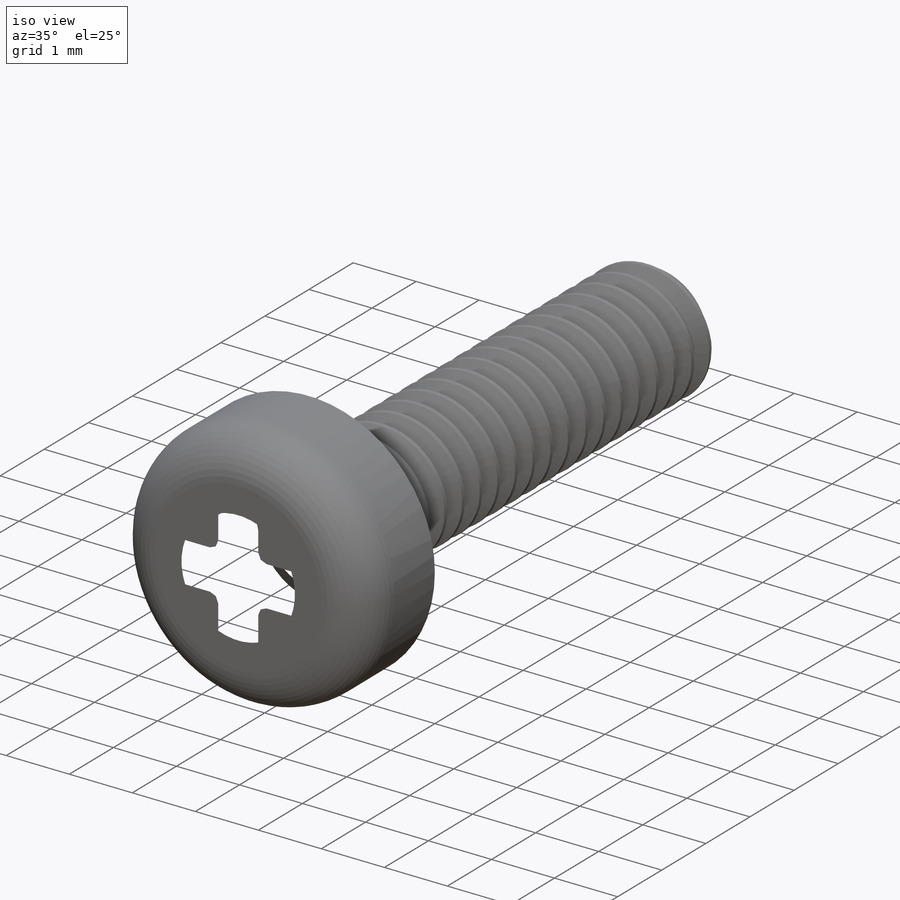
[diagram: iso view]
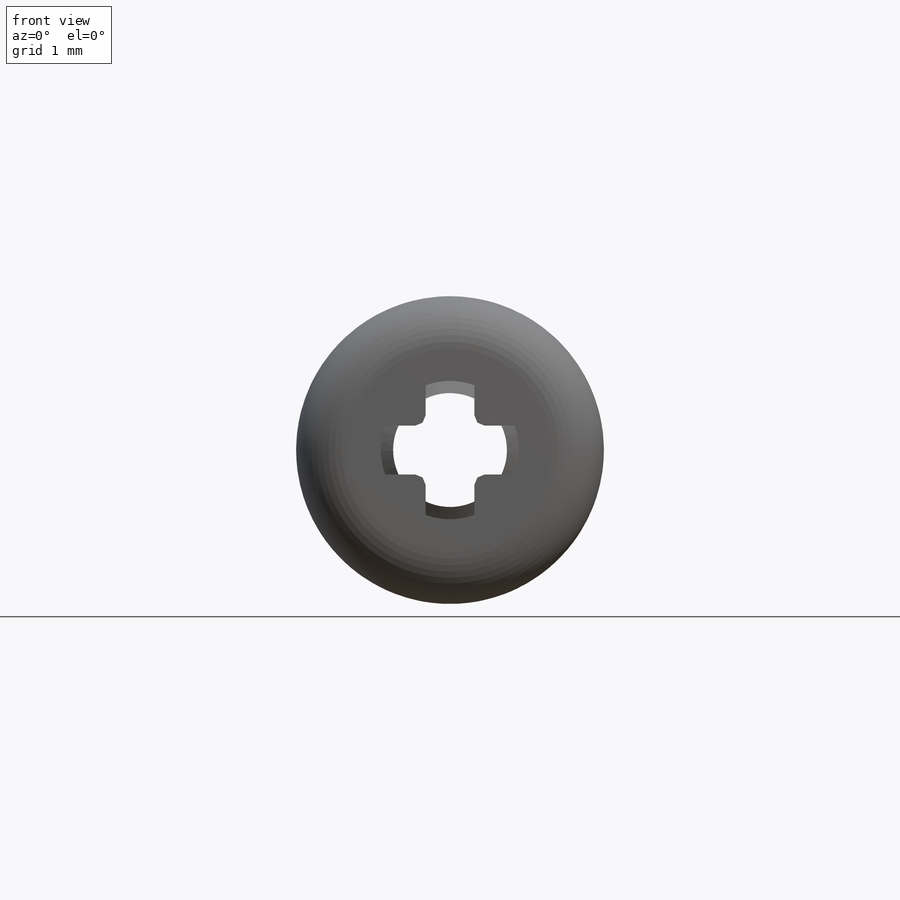
[diagram: front view]
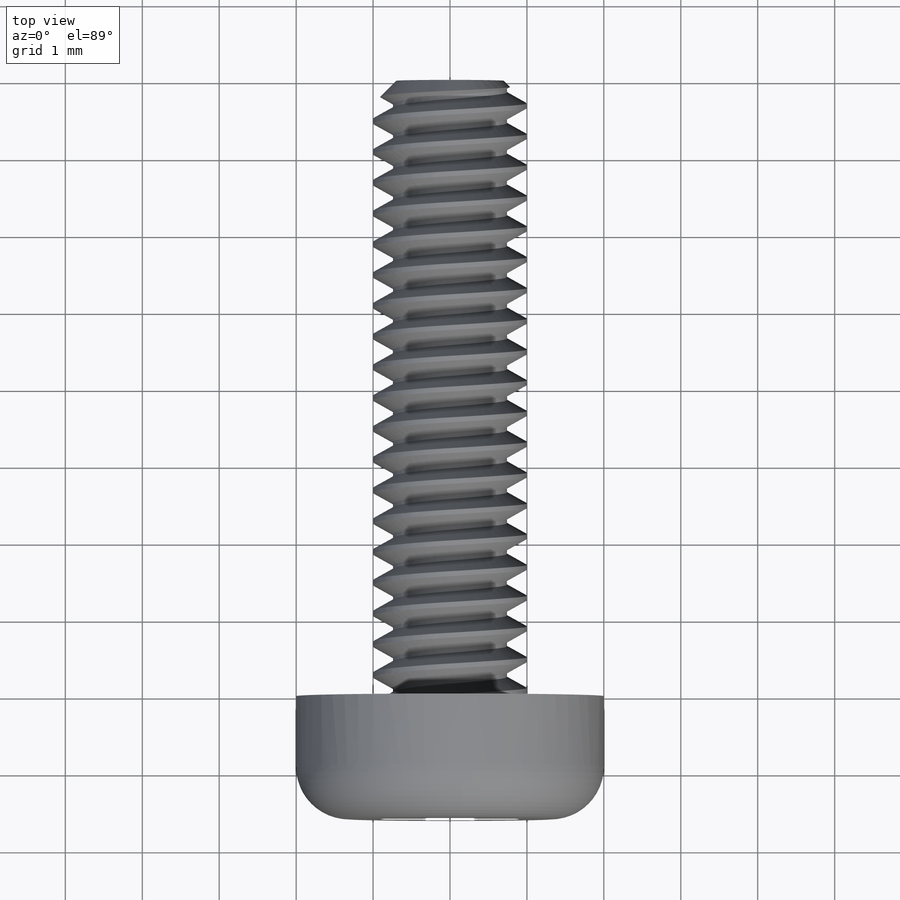
[diagram: top view]
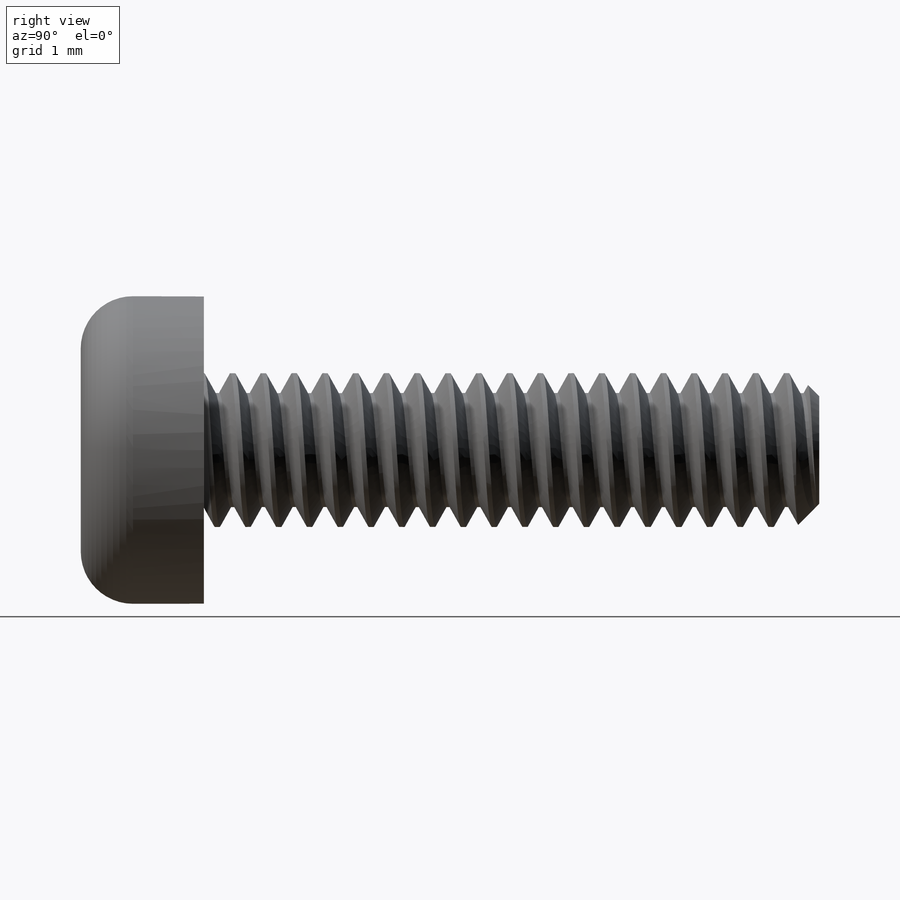
[diagram: right view]
SOLIDWORKS PART (.sldprt)
format: sldprt  version: not decoded by parser v0  size: 1,219,584 bytes
history: native  units: mm
features: sketch x9, extrude x3, material x1, cut_revolve x1, revolve x1, helix x1, chamfer x1, sweep x1, plane x1, cut_extrude x1, pattern_circular x1 (+13 scaffold rows collapsed; 1 parser-record rows omitted)
feature tree (35):
  scaffold x13  (default folders/planes/origin — collapsed)
  material  "Material <not specified>"
  sketch  "Sketch1"  dims[Washer OD=8.3312mm Head Dia=4.0mm Hex=6.35mm]
  extrude  "Extrude3"  Depth=1.6mm Head Ht=1.6mm
  sketch  "Sketch11"  dims[c1.D2=0.889mm c1.D4=0.68mm c1.D1=0.254mm c2.D2=~1.642533mm c2.D3=~1.947333mm c3.D2=~1.66218mm c4.D2=5.0deg c4.D1=~3.294374mm c5.D1=82.0deg c5.D2=0.254mm c5.D3=0.254mm c5.dia=2.1844mm c6.D1=0.4445mm c6.D5=0.08mm]
  cut_revolve  "Cut-Revolve3"  Angle=360deg
  sketch  "Sketch4"  dims[c1.Screw Dia=9.525mm c1.Screw Length=12.7mm c1.Drill Length=~7.14375mm c1.D1=~1.417672mm c2.D1=45.0deg c2.Body Length=44.958mm c2.Screw Length=12.7mm c3.Screw Length=25.4mm c3.D1=90.0deg c4.Screw Length=50.8mm c4.Length=~39.600133mm c4.dia=7.9248mm c4.length=50.8mm c5.length=6.35mm c6.length=76.2mm c7.length=8.0mm c7.dia=2.0mm]
  revolve  "Revolve1"  Angle=360deg
  sketch  "Sketch13"  dims[D1=0.0mm]
  helix  "Helix/Spiral1"  Pitch=9.6mm
  chamfer  "Chamfer2"  Distance=0.3mm Angle=45deg
  sketch  "Sketch14"  dims[c1.D1=0.05mm c1.D2=~2.089547mm c2.D2=58.0deg c2.D3=0.2mm c2.D4=0.0125mm]
  sweep  "Cut-Sweep1"
  plane  "Plane1"  Offset=38.1mm
  parser-record x1  (decoder bookkeeping rows leaked as tree rows — omitted from the tree; the rows remain in map.json)
  sketch  "Sketch29"
  extrude  "Extrude11"  [1 undecoded]
  sketch  "Sketch26"  dims[D1=0.4mm]
  extrude  "Extrude13"  [1 undecoded]
  sketch  "Sketch31"  dims[c1.slot dia=1.8mm c1.D1=45.0deg c1.D2=22.5deg c1.slot width=1.524mm c1.D4=6.985mm c2.D1=2.1875mm c3.D1=2.1875deg c3.D2=22.5deg c3.slot w=0.635mm c4.D1=~1.39194mm c5.D1=45.0deg c6.D1=~0.98425mm c7.D1=45.0deg c8.D1=~1.773601mm c9.D1=45.0deg c10.D1=~1.39194mm c11.D1=45.0deg]
  cut_extrude  "Extrude15"  Depth=1.36mm
  pattern_circular  "CirPattern1"  Count=4 Angle=360deg
  sketch  "Sketch18"  dims[D1=0.4mm D2=0.6mm]
decode coverage: 15 of 19 modeling features carry decoded parameters
note: ~ marks probable driven/reference dimensions
note: 2 parameter values undecoded
note: suppression state not decoded; provenance and decode notes live in map.json
